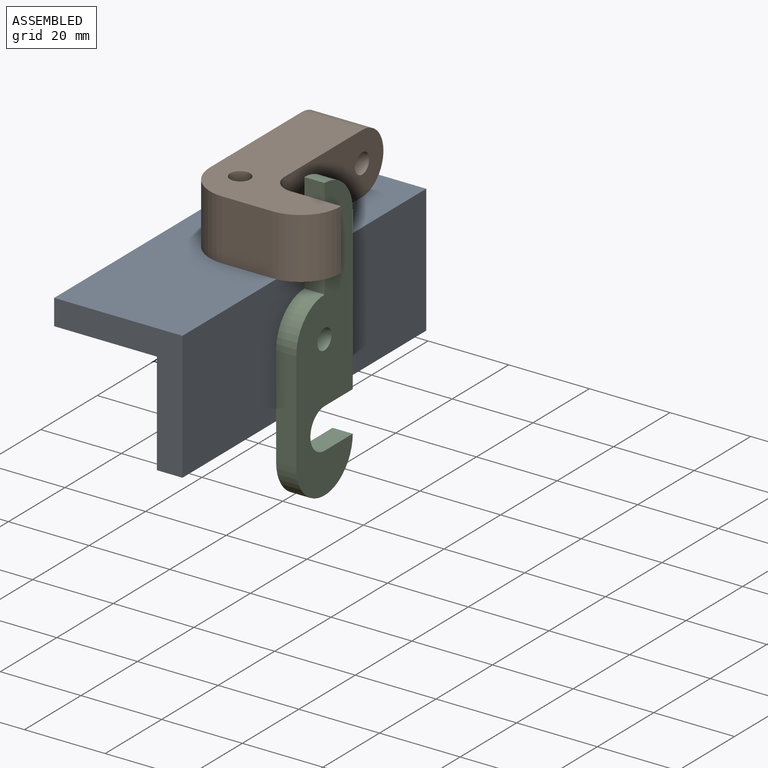
[diagram: assembled view]
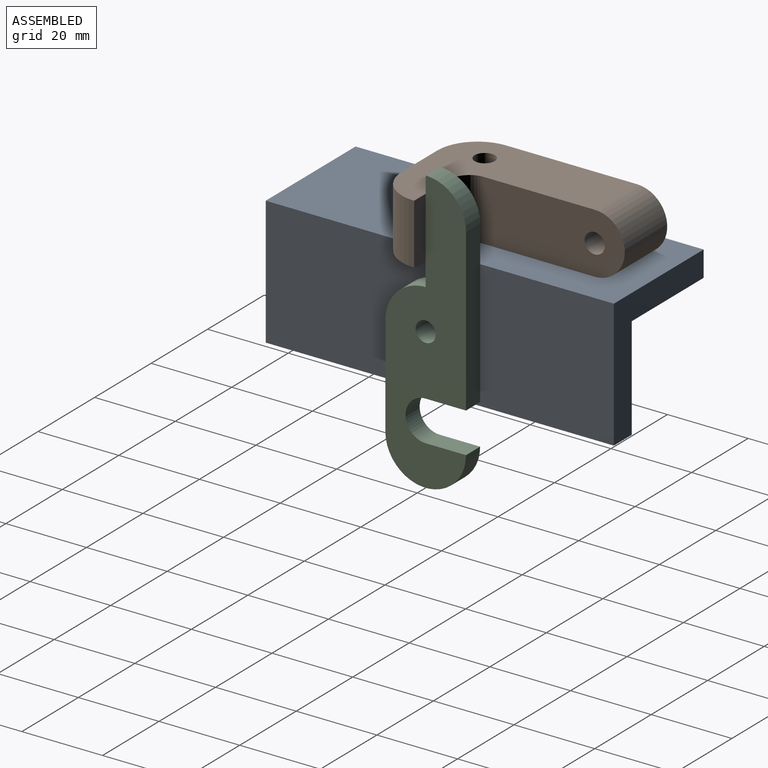
[diagram: assembled view, second angle]
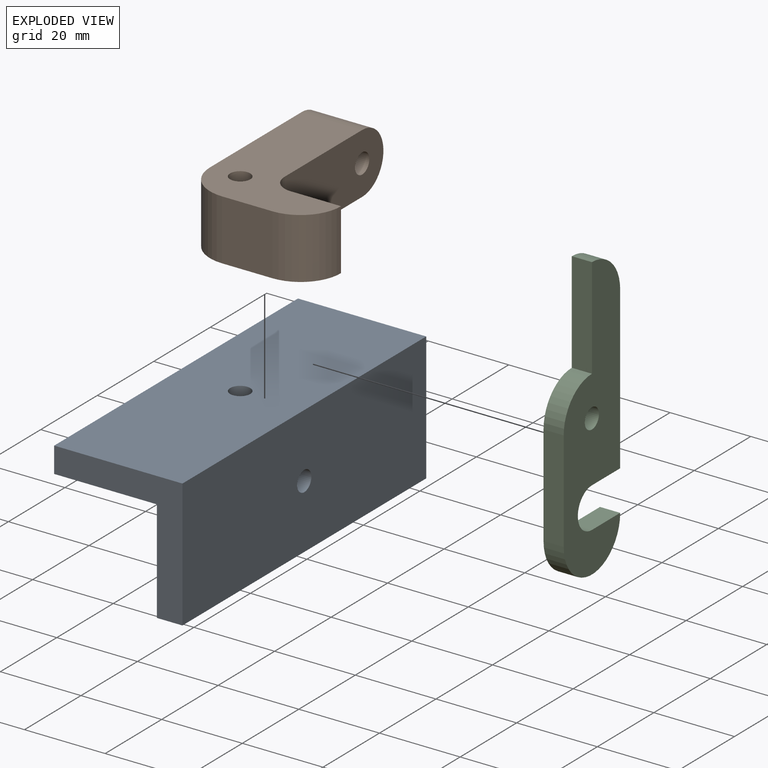
[diagram: exploded view]
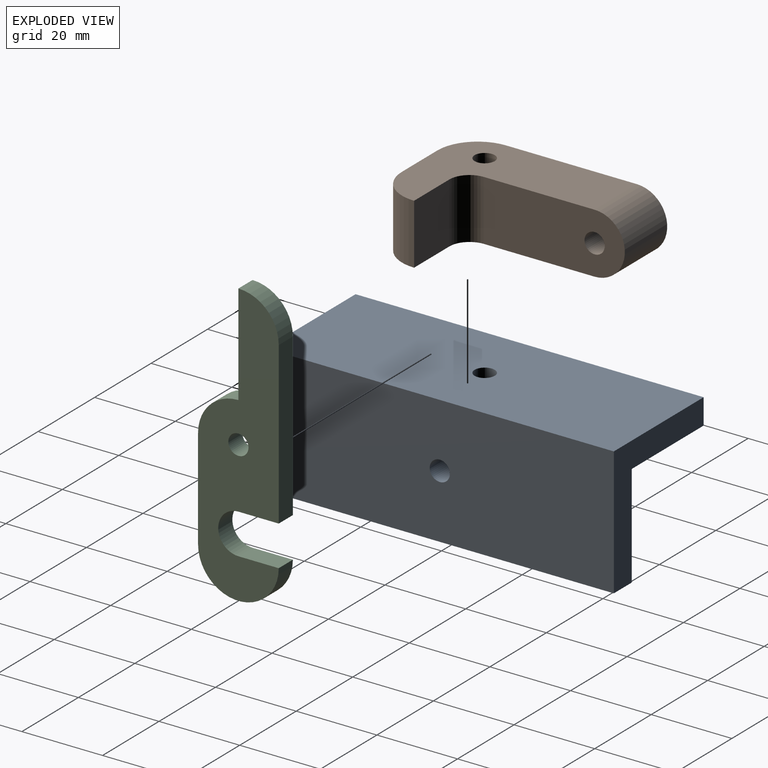
[diagram: exploded view, second angle]
ASSEMBLY  parts=3 mates=2
PART A: 10 faces, bbox 31.8x86.3x31.8 mm
  f0: plane 86.3x6.35mm, normal (-1,0,0), area 548mm2, adj f1,f5,f6,f7
  f1: plane 86.3x25.45mm, normal (0,0,-1), area 2176.7mm2, adj f0,f2,f6,f7,f8
  f2: plane 86.3x25.45mm, normal (-1,0,0), area 2176.7mm2, adj f1,f3,f6,f7,f9
  f3: plane 86.3x6.35mm, normal (0,0,-1), area 548mm2, adj f2,f4,f6,f7
  f4: plane 86.3x31.8mm, normal (1,0,0), area 2724.7mm2, adj f3,f5,f6,f7,f9
  f5: plane 86.3x31.8mm, normal (0,0,1), area 2724.7mm2, adj f0,f4,f6,f7,f8
  f6: plane 31.8x31.8mm, normal (0,-1,0), area 363.5mm2, adj f0,f1,f2,f3,f4,f5
  f7: plane 31.8x31.8mm, normal (0,1,0), area 363.5mm2, adj f0,f1,f2,f3,f4,f5
  f8: cylinder r=2.5mm len=6.35mm, axis (0,0,1), area 99.7mm2, adj f1,f5
  f9: cylinder r=2.5mm len=6.35mm, axis (1,0,0), area 99.7mm2, adj f2,f4
PART B: 12 faces, bbox 32.5x50x15 mm
  f0: plane 35x15mm, normal (1,0,0), area 481.2mm2, adj f6,f8,f9,f10,f11
  f1: plane 40x15mm, normal (-1,0,0), area 556.2mm2, adj f2,f8,f9,f10,f11
  f2: cylinder r=10mm len=15mm, axis (0,0,-1), area 235.6mm2, adj f1,f3,f8,f9
  f3: plane 15x12.5mm, normal (0,-1,0), area 187.5mm2, adj f2,f4,f8,f9
  f4: cylinder r=10mm len=15mm, axis (0,0,-1), area 235.6mm2, adj f3,f5,f8,f9
  f5: plane 15x12.5mm, normal (0,1,0), area 187.5mm2, adj f4,f6,f8,f9
  f6: cylinder r=5mm len=15mm, axis (0,0,-1), area 117.8mm2, adj f0,f5,f8,f9
  f7: cylinder r=2.5mm len=15mm, axis (0,0,-1), area 235.6mm2, adj f8,f9
  f8: plane 42.5x32.5mm, normal (0,0,1), area 755.3mm2, adj f0,f1,f2,f3,f4,f5,f6,f7
  f9: plane 42.5x32.5mm, normal (0,0,-1), area 755.3mm2, adj f0,f1,f2,f3,f4,f5,f6,f7
  f10: cylinder r=7.5mm len=15mm, axis (1,0,0), area 353.4mm2, adj f0,f1,f8,f9
  f11: cylinder r=2.5mm len=15mm, axis (1,0,0), area 235.6mm2, adj f0,f1
PART C: 12 faces, bbox 5x20x70 mm
  f0: cylinder r=10mm len=10mm, axis (-1,0,0), area 78.5mm2, adj f1,f8,f10,f11
  f1: plane 25x5mm, normal (0,-1,0), area 125mm2, adj f0,f2,f10,f11
  f2: cylinder r=10mm len=10mm, axis (-1,0,0), area 78.5mm2, adj f1,f3,f10,f11
  f3: plane 25x5mm, normal (0,-1,0), area 125mm2, adj f2,f4,f10,f11
  f4: cylinder r=10mm len=20mm, axis (-1,0,0), area 157.1mm2, adj f3,f5,f10,f11
  f5: plane 10x5mm, normal (0,0,1), area 50mm2, adj f4,f6,f10,f11
  f6: cylinder r=5mm len=10mm, axis (-1,0,0), area 78.5mm2, adj f5,f7,f10,f11
  f7: plane 10x5mm, normal (0,0,-1), area 50mm2, adj f6,f8,f10,f11
  f8: plane 40x5mm, normal (0,1,0), area 200mm2, adj f0,f7,f10,f11
  f9: cylinder r=2.5mm len=5mm, axis (-1,0,0), area 78.5mm2, adj f10,f11
  f10: plane 70x20mm, normal (1,0,0), area 905.3mm2, adj f0,f1,f2,f3,f4,f5,f6,f7
  f11: plane 70x20mm, normal (-1,0,0), area 905.3mm2, adj f0,f1,f2,f3,f4,f5,f6,f7
PLACE A t=(-39.27,62.57,-44.09)mm
PLACE B t=(-36.13,19.42,-20.13)mm
PLACE C t=(-20.23,19.42,-36.03)mm
MATE slider B.f7 <-> A.f8  axis (0,0,-1) through (-36.13,19.42,-20.13)mm
MATE revolute A.f9 <-> C.f9  axis (1,0,0) through (-20.23,19.42,-36.03)mm
